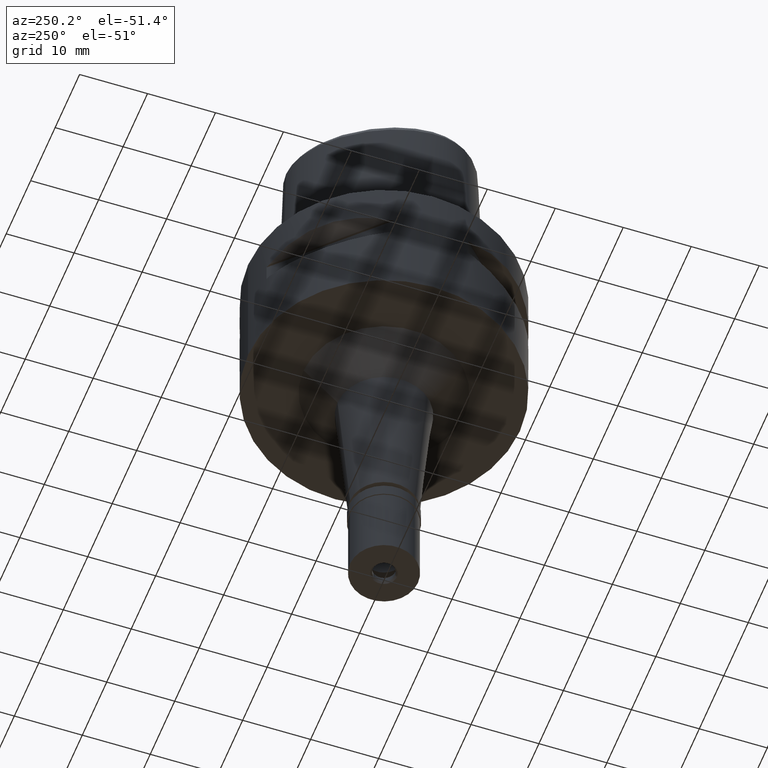
[diagram: clean part render]
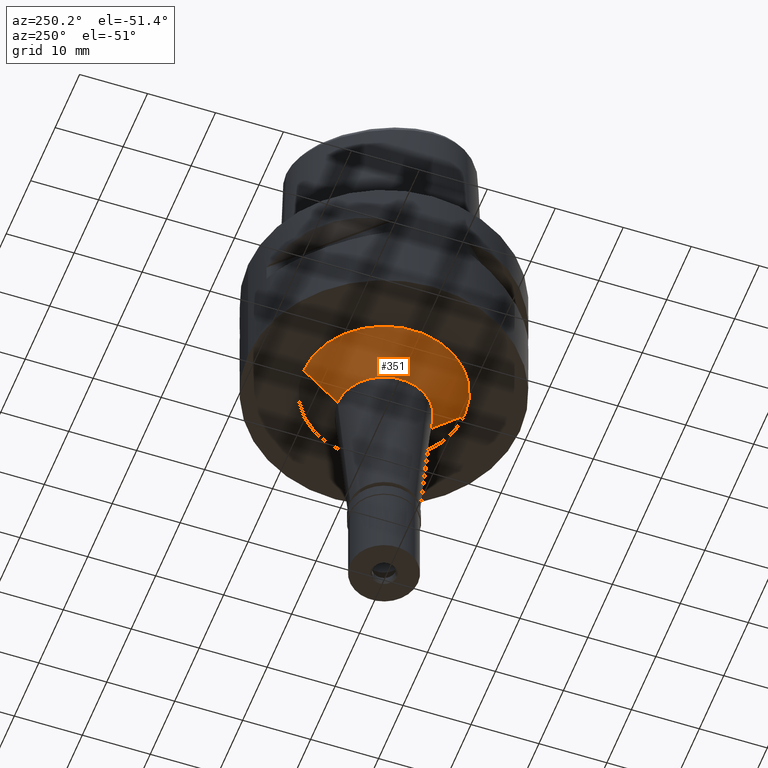
[diagram: same view with one face highlighted and labeled with its STEP entity id]
A machine part, auxiliary view. The second image highlights one B-rep face of the part: STEP entity #351.
In plain terms, the highlighted conical surface has half-angle 45 deg.
Its self-contained STEP definition (entity closure, byte-faithful):
#15 = VECTOR ( 'NONE', #3777, 1000.000000000000000 ) ;
#162 = AXIS2_PLACEMENT_3D ( 'NONE', #1626, #3045, #1277 ) ;
#262 = DIRECTION ( 'NONE',  ( 0.0000000000000000000, 0.7071067811864475416, -0.7071067811866476038 ) ) ;
#311 = EDGE_CURVE ( 'NONE', #2738, #960, #2347, .T. ) ;
#351 = ADVANCED_FACE ( 'NONE', ( #1602 ), #1060, .T. ) ;
#511 = ORIENTED_EDGE ( 'NONE', *, *, #3698, .T. ) ;
#622 = DIRECTION ( 'NONE',  ( 0.0000000000000000000, 0.0000000000000000000, -1.000000000000000000 ) ) ;
#687 = AXIS2_PLACEMENT_3D ( 'NONE', #3057, #2708, #3010 ) ;
#909 = CARTESIAN_POINT ( 'NONE',  ( 0.0000000000000000000, 11.83726193404000071, -20.00000000000000000 ) ) ;
#960 = VERTEX_POINT ( 'NONE', #4508 ) ;
#974 = EDGE_CURVE ( 'NONE', #960, #2648, #3434, .T. ) ;
#1060 = CONICAL_SURFACE ( 'NONE', #162, 9.337261934043000977, 0.7853981633972997312 ) ;
#1096 = ORIENTED_EDGE ( 'NONE', *, *, #311, .F. ) ;
#1224 = CARTESIAN_POINT ( 'NONE',  ( 0.0000000000000000000, -11.83726193404000071, -20.00000000000000000 ) ) ;
#1277 = DIRECTION ( 'NONE',  ( 0.0000000000000000000, 1.000000000000000000, 0.0000000000000000000 ) ) ;
#1602 = FACE_OUTER_BOUND ( 'NONE', #2072, .T. ) ;
#1626 = CARTESIAN_POINT ( 'NONE',  ( 0.0000000000000000000, 0.0000000000000000000, -22.50000000000000000 ) ) ;
#1905 = ORIENTED_EDGE ( 'NONE', *, *, #974, .F. ) ;
#1993 = EDGE_CURVE ( 'NONE', #2527, #2648, #2299, .T. ) ;
#2072 = EDGE_LOOP ( 'NONE', ( #1905, #1096, #511, #4246 ) ) ;
#2299 = LINE ( 'NONE', #909, #15 ) ;
#2347 = LINE ( 'NONE', #4116, #4391 ) ;
#2412 = CARTESIAN_POINT ( 'NONE',  ( 0.0000000000000000000, 0.0000000000000000000, -25.00000000000000000 ) ) ;
#2527 = VERTEX_POINT ( 'NONE', #3221 ) ;
#2615 = AXIS2_PLACEMENT_3D ( 'NONE', #2412, #622, #4202 ) ;
#2648 = VERTEX_POINT ( 'NONE', #3243 ) ;
#2708 = DIRECTION ( 'NONE',  ( 0.0000000000000000000, 0.0000000000000000000, -1.000000000000000000 ) ) ;
#2738 = VERTEX_POINT ( 'NONE', #1224 ) ;
#3010 = DIRECTION ( 'NONE',  ( 0.0000000000000000000, -1.000000000000000000, 0.0000000000000000000 ) ) ;
#3045 = DIRECTION ( 'NONE',  ( 0.0000000000000000000, 0.0000000000000000000, 1.000000000000000000 ) ) ;
#3057 = CARTESIAN_POINT ( 'NONE',  ( 0.0000000000000000000, 0.0000000000000000000, -20.00000000000000000 ) ) ;
#3221 = CARTESIAN_POINT ( 'NONE',  ( 0.0000000000000000000, 11.83726193404000071, -20.00000000000000000 ) ) ;
#3243 = CARTESIAN_POINT ( 'NONE',  ( 0.0000000000000000000, 6.837261934044000178, -25.00000000000000000 ) ) ;
#3434 = CIRCLE ( 'NONE', #2615, 6.837261934044000178 ) ;
#3698 = EDGE_CURVE ( 'NONE', #2738, #2527, #4329, .T. ) ;
#3777 = DIRECTION ( 'NONE',  ( 0.0000000000000000000, -0.7071067811864475416, -0.7071067811866476038 ) ) ;
#4116 = CARTESIAN_POINT ( 'NONE',  ( 0.0000000000000000000, -11.83726193404000071, -20.00000000000000000 ) ) ;
#4202 = DIRECTION ( 'NONE',  ( 0.0000000000000000000, -1.000000000000000000, 0.0000000000000000000 ) ) ;
#4246 = ORIENTED_EDGE ( 'NONE', *, *, #1993, .T. ) ;
#4329 = CIRCLE ( 'NONE', #687, 11.83726193404000071 ) ;
#4391 = VECTOR ( 'NONE', #262, 1000.000000000000000 ) ;
#4508 = CARTESIAN_POINT ( 'NONE',  ( 0.0000000000000000000, -6.837261934044000178, -25.00000000000000000 ) ) ;